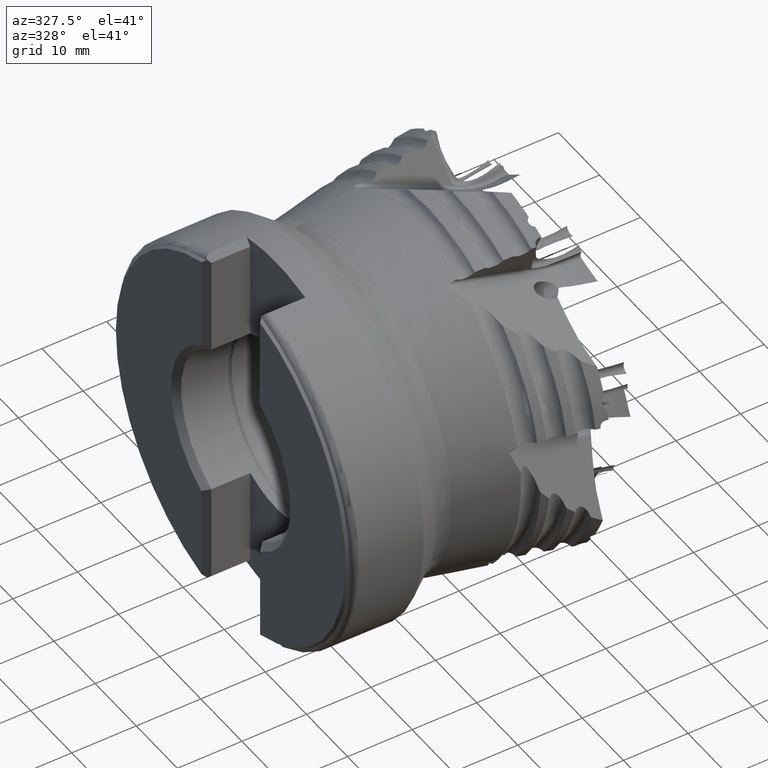
[diagram: clean part render]
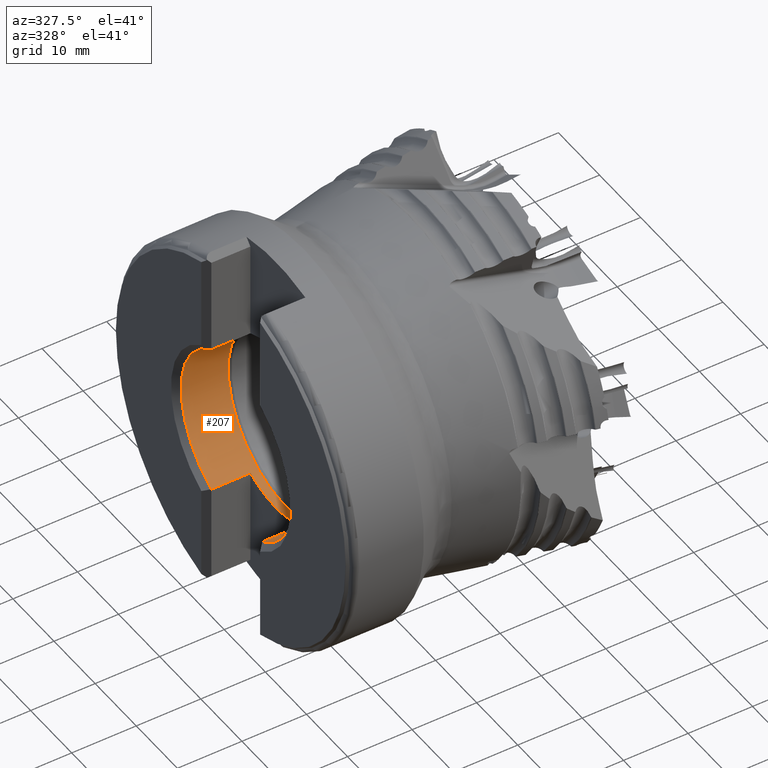
[diagram: same view with one face highlighted and labeled with its STEP entity id]
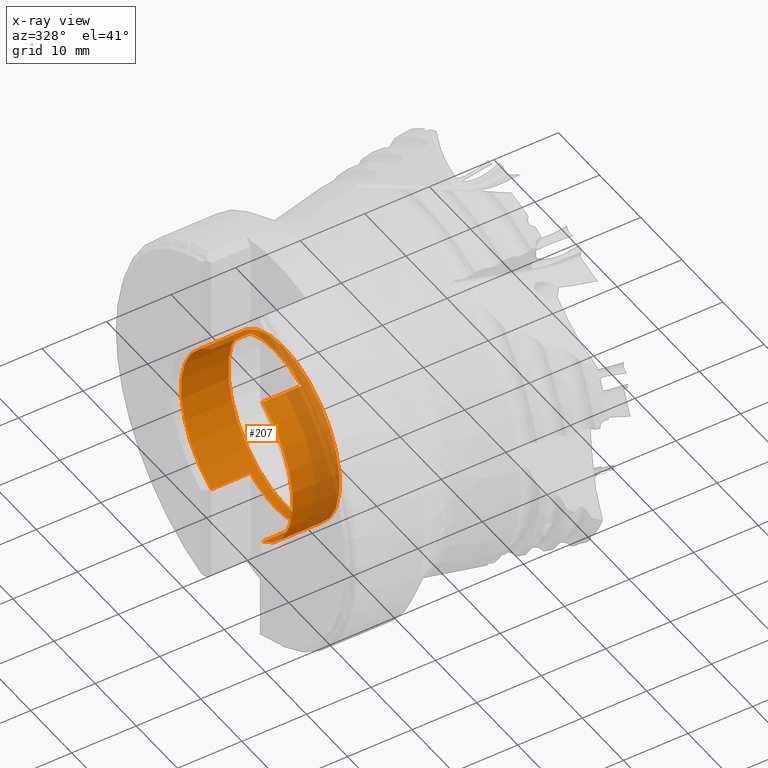
[diagram: x-ray of the same camera — body ghosted, the highlighted face saturated]
A machine part, auxiliary view. The second image highlights one B-rep face of the part: STEP entity #207.
The next image is the same camera in x-ray: the body ghosted, the highlighted face saturated — about 27% of this face is hidden behind the body in this view.
In plain terms, the highlighted cylindrical surface (bore or boss wall) has radius 13.575 mm, axis along (1, -0, -0).
Its self-contained STEP definition (entity closure, byte-faithful):
#31 = VERTEX_POINT ( 'NONE', #4747 ) ;
#207 = ADVANCED_FACE ( 'NONE', ( #863, #3353 ), #5858, .F. ) ;
#310 = EDGE_CURVE ( 'NONE', #8035, #31, #6181, .T. ) ;
#687 = ORIENTED_EDGE ( 'NONE', *, *, #310, .T. ) ;
#803 = AXIS2_PLACEMENT_3D ( 'NONE', #1734, #9179, #2813 ) ;
#863 = FACE_OUTER_BOUND ( 'NONE', #1948, .T. ) ;
#1734 = CARTESIAN_POINT ( 'NONE',  ( -41.99999999999999300, 0.0000000000000000000, 0.0000000000000000000 ) ) ;
#1776 = DIRECTION ( 'NONE',  ( 1.000000000000000000, -0.0000000000000000000, -0.0000000000000000000 ) ) ;
#1929 = VECTOR ( 'NONE', #4384, 1000.000000000000000 ) ;
#1948 = EDGE_LOOP ( 'NONE', ( #7110, #4758, #13364, #687, #7933, #7341, #8344, #10838 ) ) ;
#2192 = ORIENTED_EDGE ( 'NONE', *, *, #7721, .T. ) ;
#2270 = AXIS2_PLACEMENT_3D ( 'NONE', #9074, #7895, #2789 ) ;
#2596 = CIRCLE ( 'NONE', #5026, 13.57499999999999400 ) ;
#2680 = VECTOR ( 'NONE', #7281, 1000.000000000000000 ) ;
#2789 = DIRECTION ( 'NONE',  ( 0.0000000000000000000, 0.0000000000000000000, -1.000000000000000000 ) ) ;
#2813 = DIRECTION ( 'NONE',  ( 0.0000000000000000000, 1.776356839400250500E-015, -1.000000000000000000 ) ) ;
#2889 = CIRCLE ( 'NONE', #803, 13.57499999999999400 ) ;
#3296 = VERTEX_POINT ( 'NONE', #6751 ) ;
#3353 = FACE_OUTER_BOUND ( 'NONE', #5922, .T. ) ;
#3514 = VECTOR ( 'NONE', #8354, 1000.000000000000000 ) ;
#3618 = EDGE_CURVE ( 'Kante69', #12735, #8605, #2889, .T. ) ;
#3885 = CARTESIAN_POINT ( 'NONE',  ( -41.99999999999999300, 6.199999999999994000, -12.07644918839970500 ) ) ;
#4035 = CARTESIAN_POINT ( 'NONE',  ( 1.777733148934907600E-015, -6.199999999999992200, -12.07644918839970500 ) ) ;
#4257 = CARTESIAN_POINT ( 'NONE',  ( -48.04999999999999700, 6.199999999999994000, -12.07644918839970500 ) ) ;
#4309 = CARTESIAN_POINT ( 'NONE',  ( 0.0000000000000000000, 6.199999999999994000, -12.07644918839970500 ) ) ;
#4384 = DIRECTION ( 'NONE',  ( 1.000000000000000000, -0.0000000000000000000, -0.0000000000000000000 ) ) ;
#4567 = DIRECTION ( 'NONE',  ( 1.000000000000000000, -0.0000000000000000000, -0.0000000000000000000 ) ) ;
#4747 = CARTESIAN_POINT ( 'NONE',  ( -48.04999999999999700, -6.200000000000005500, -12.07644918839970000 ) ) ;
#4758 = ORIENTED_EDGE ( 'NONE', *, *, #11283, .T. ) ;
#4832 = CARTESIAN_POINT ( 'NONE',  ( -48.04999999999999700, 0.0000000000000000000, 0.0000000000000000000 ) ) ;
#5026 = AXIS2_PLACEMENT_3D ( 'NONE', #4832, #12241, #5923 ) ;
#5131 = EDGE_CURVE ( 'NONE', #8605, #3296, #9185, .T. ) ;
#5153 = AXIS2_PLACEMENT_3D ( 'NONE', #5540, #12941, #6603 ) ;
#5421 = LINE ( 'NONE', #4309, #8239 ) ;
#5471 = CARTESIAN_POINT ( 'NONE',  ( 1.777733148934907600E-015, -6.199999999999992200, 12.07644918839970500 ) ) ;
#5540 = CARTESIAN_POINT ( 'NONE',  ( -41.99999999999999300, 0.0000000000000000000, 0.0000000000000000000 ) ) ;
#5858 = CYLINDRICAL_SURFACE ( 'NONE', #2270, 13.57499999999999400 ) ;
#5900 = CIRCLE ( 'NONE', #5153, 13.57499999999999400 ) ;
#5922 = EDGE_LOOP ( 'NONE', ( #2192 ) ) ;
#5923 = DIRECTION ( 'NONE',  ( 0.0000000000000000000, 0.0000000000000000000, -1.000000000000000000 ) ) ;
#6134 = VERTEX_POINT ( 'NONE', #8349 ) ;
#6181 = LINE ( 'NONE', #4035, #2680 ) ;
#6603 = DIRECTION ( 'NONE',  ( 0.0000000000000000000, 0.0000000000000000000, -1.000000000000000000 ) ) ;
#6751 = CARTESIAN_POINT ( 'NONE',  ( -48.04999999999999700, 6.199999999999994000, 12.07644918839970500 ) ) ;
#6813 = CARTESIAN_POINT ( 'NONE',  ( -41.99999999999999300, 6.199999999999994000, 12.07644918839970500 ) ) ;
#7110 = ORIENTED_EDGE ( 'NONE', *, *, #12054, .F. ) ;
#7281 = DIRECTION ( 'NONE',  ( -1.000000000000000000, 0.0000000000000000000, 0.0000000000000000000 ) ) ;
#7341 = ORIENTED_EDGE ( 'NONE', *, *, #7451, .T. ) ;
#7451 = EDGE_CURVE ( 'Kante3', #6134, #12735, #9975, .T. ) ;
#7721 = EDGE_CURVE ( 'NONE', #10507, #10507, #12550, .T. ) ;
#7895 = DIRECTION ( 'NONE',  ( 1.000000000000000000, -0.0000000000000000000, -0.0000000000000000000 ) ) ;
#7933 = ORIENTED_EDGE ( 'NONE', *, *, #8157, .F. ) ;
#8035 = VERTEX_POINT ( 'NONE', #12997 ) ;
#8155 = CARTESIAN_POINT ( 'NONE',  ( -40.74999999999999300, 0.0000000000000000000, 0.0000000000000000000 ) ) ;
#8157 = EDGE_CURVE ( 'NONE', #6134, #31, #2596, .T. ) ;
#8239 = VECTOR ( 'NONE', #10663, 1000.000000000000000 ) ;
#8344 = ORIENTED_EDGE ( 'NONE', *, *, #3618, .T. ) ;
#8349 = CARTESIAN_POINT ( 'NONE',  ( -48.04999999999999700, -6.200000000000005500, 12.07644918839969800 ) ) ;
#8354 = DIRECTION ( 'NONE',  ( -1.000000000000000000, 0.0000000000000000000, 0.0000000000000000000 ) ) ;
#8605 = VERTEX_POINT ( 'NONE', #6813 ) ;
#8899 = VERTEX_POINT ( 'NONE', #3885 ) ;
#9074 = CARTESIAN_POINT ( 'NONE',  ( 0.0000000000000000000, 0.0000000000000000000, 0.0000000000000000000 ) ) ;
#9105 = VERTEX_POINT ( 'NONE', #4257 ) ;
#9179 = DIRECTION ( 'NONE',  ( -1.000000000000000000, -0.0000000000000000000, -0.0000000000000000000 ) ) ;
#9185 = LINE ( 'NONE', #12594, #3514 ) ;
#9236 = DIRECTION ( 'NONE',  ( 0.0000000000000000000, 0.0000000000000000000, -1.000000000000000000 ) ) ;
#9975 = LINE ( 'NONE', #5471, #1929 ) ;
#10507 = VERTEX_POINT ( 'NONE', #12699 ) ;
#10536 = AXIS2_PLACEMENT_3D ( 'NONE', #8155, #1776, #9236 ) ;
#10663 = DIRECTION ( 'NONE',  ( 1.000000000000000000, -0.0000000000000000000, -0.0000000000000000000 ) ) ;
#10838 = ORIENTED_EDGE ( 'NONE', *, *, #5131, .T. ) ;
#10914 = CARTESIAN_POINT ( 'NONE',  ( -48.04999999999999700, 0.0000000000000000000, 0.0000000000000000000 ) ) ;
#11283 = EDGE_CURVE ( 'NONE', #9105, #8899, #5421, .T. ) ;
#11531 = CIRCLE ( 'NONE', #11617, 13.57499999999999400 ) ;
#11617 = AXIS2_PLACEMENT_3D ( 'NONE', #10914, #4567, #11968 ) ;
#11687 = CARTESIAN_POINT ( 'NONE',  ( -41.99999999999999300, -6.200000000000003700, 12.07644918839970100 ) ) ;
#11968 = DIRECTION ( 'NONE',  ( 0.0000000000000000000, 0.0000000000000000000, -1.000000000000000000 ) ) ;
#12054 = EDGE_CURVE ( 'NONE', #9105, #3296, #11531, .T. ) ;
#12241 = DIRECTION ( 'NONE',  ( 1.000000000000000000, -0.0000000000000000000, -0.0000000000000000000 ) ) ;
#12550 = CIRCLE ( 'NONE', #10536, 13.57499999999999400 ) ;
#12594 = CARTESIAN_POINT ( 'NONE',  ( 0.0000000000000000000, 6.199999999999994000, 12.07644918839970500 ) ) ;
#12699 = CARTESIAN_POINT ( 'NONE',  ( -40.74999999999999300, 0.0000000000000000000, -13.57499999999999400 ) ) ;
#12735 = VERTEX_POINT ( 'NONE', #11687 ) ;
#12832 = EDGE_CURVE ( 'Kante70', #8899, #8035, #5900, .T. ) ;
#12941 = DIRECTION ( 'NONE',  ( -1.000000000000000000, -0.0000000000000000000, -0.0000000000000000000 ) ) ;
#12997 = CARTESIAN_POINT ( 'NONE',  ( -41.99999999999999300, -6.200000000000003700, -12.07644918839970500 ) ) ;
#13364 = ORIENTED_EDGE ( 'NONE', *, *, #12832, .T. ) ;